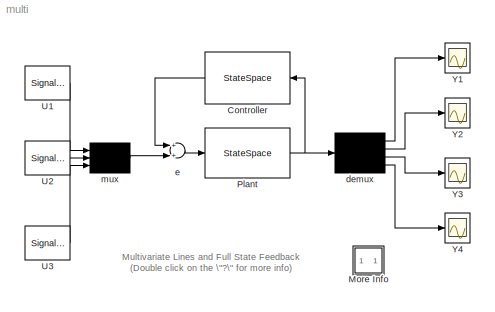
MODEL multi
KIND model
CONFIG PreLoadFcn = multidat
BLOCK [StateSpace] Controller
  A = eye(size(a))
  B = ones(size(c'))
  C = ones(size(b'))
  D = zeros(size(d'))
BLOCK [SubSystem] More Info
  MaskDisplay = disp('?')
  MaskIconFrame = on
  MaskIconOpaque = on
  MaskIconRotate = none
  MaskIconUnits = autoscale
  MinAlgLoopOccurrences = off
  Ports = []
  PropExecContextAcrossSSBoundary = on
  RTWSystemCode = Auto
  TreatAsAtomicUnit = off
BLOCK [StateSpace] Plant
  A = a
  B = b
  C = c
  D = d
BLOCK [SignalGenerator] U1
  Amplitude = 0.491200
  Frequency = 4.000000
  Ports = [0, 1]
  Units = rad/sec
BLOCK [SignalGenerator] U2
  Amplitude = 0.130000
  Frequency = 6.000000
  Ports = [0, 1]
  Units = rad/sec
BLOCK [SignalGenerator] U3
  Amplitude = 0.160000
  Frequency = 1.000000
  Ports = [0, 1]
  Units = rad/sec
BLOCK [Scope] Y1
  DataFormat = Array
  NumInputPorts = 1
  Ports = [1]
  TickLabels = on
  TimeRange = 1e+06
  YMax = 1e+265
  YMin = -3e+265
BLOCK [Scope] Y2
  DataFormat = Array
  NumInputPorts = 1
  Ports = [1]
  TickLabels = on
  TimeRange = 1e+06
  YMax = 2e+265
  YMin = 0
BLOCK [Scope] Y3
  DataFormat = Array
  NumInputPorts = 1
  Ports = [1]
  TickLabels = on
  TimeRange = 1e+06
  YMax = 5e+263
  YMin = -2e+264
BLOCK [Scope] Y4
  DataFormat = Array
  NumInputPorts = 1
  Ports = [1]
  TickLabels = on
  TimeRange = 1e+06
  YMax = 5e+264
  YMin = -1.5e+265
BLOCK [Demux] demux
  Ports = [1, 4]
BLOCK [Sum] e
  Ports = [2, 1]
BLOCK [Mux] mux
  Inputs = 3
  Ports = [3, 1]
ANNOTATION (root): Multivariate Lines and Full State Feedback\n(Double click on the \"?\" for more info)
ANNOTATION More Info: This demonstration shows how multivariate lines can be \nused for full state feedback and control of a MIMO system.
ANNOTATION More Info: Use the signal generators and scopes to observe how \nthe system is modeled, or try to improve the controller.
LINE Controller:1 -> e:1
NET Plant:1 -> Controller:1, demux:1
LINE U1:1 -> mux:1
LINE U2:1 -> mux:2
LINE U3:1 -> mux:3
LINE demux:1 -> Y1:1
LINE demux:2 -> Y2:1
LINE demux:3 -> Y3:1
LINE demux:4 -> Y4:1
LINE e:1 -> Plant:1
LINE mux:1 -> e:2
note: NET lines group one-source signal fan-out (src -> all destinations, sorted); 1:1 wires keep LINE
